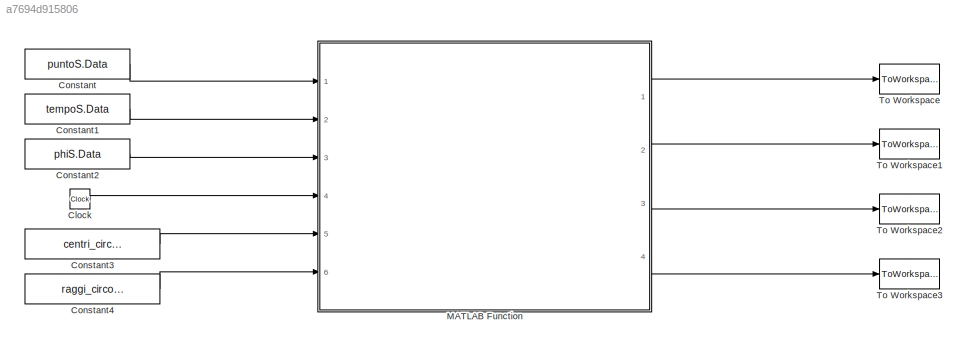
MODEL slx_a7694d915806
KIND model
CONFIG AbsTol = auto
CONFIG EnableMultiTasking = off
CONFIG FixedStep = 0.05
CONFIG MaxStep = auto
CONFIG MinStep = auto
CONFIG RelTol = 1e-3
CONFIG SampleTimeConstraint = Unconstrained
CONFIG Solver = FixedStepAuto
CONFIG SolverName = FixedStepAuto
CONFIG StartTime = 0.0
CONFIG StopTime = tempoS.data(3)
BLOCK [Clock] Clock
BLOCK [Constant] Constant
  Value = puntoS.Data
BLOCK [Constant] Constant1
  Value = tempoS.Data
BLOCK [Constant] Constant2
  Value = phiS.Data
BLOCK [Constant] Constant3
  Value = centri_circonferenzeS.Data
BLOCK [Constant] Constant4
  Value = raggi_circonferenzeS.Data
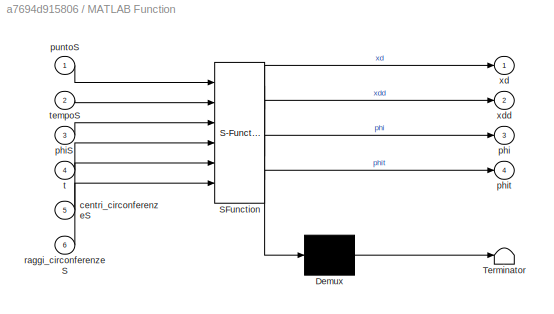
BLOCK [SubSystem] MATLAB Function
  ErrorFcn = Stateflow.Translate.translate
  PermitHierarchicalResolution = ExplicitOnly
  Ports = [6, 4]
  RequestExecContextInheritance = off
  SFBlockType = MATLAB Function
  TreatAsAtomicUnit = on
BLOCK [Demux] MATLAB Function/ Demux 
  Outputs = 1
  Ports = [1, 1]
BLOCK [S-Function] MATLAB Function/ SFunction 
  EnableBusSupport = on
  FunctionName = sf_sfun
  PortCounts = [6 5]
  Ports = [6, 5]
  SFcnIsStateOwnerBlock = off
  SFunctionDeploymentMode = off
  Tag = Stateflow S-Function TOAD_simulation 2
BLOCK [Terminator] MATLAB Function/ Terminator 
BLOCK [Inport] MATLAB Function/centri_circonferenzeS
  IconDisplay = Port number
  Port = 5
BLOCK [Outport] MATLAB Function/phi
  IconDisplay = Port number
  Port = 3
BLOCK [Inport] MATLAB Function/phiS
  IconDisplay = Port number
  Port = 3
BLOCK [Outport] MATLAB Function/phit
  IconDisplay = Port number
  Port = 4
BLOCK [Inport] MATLAB Function/puntoS
  IconDisplay = Port number
BLOCK [Inport] MATLAB Function/raggi_circonferenzeS
  IconDisplay = Port number
  Port = 6
BLOCK [Inport] MATLAB Function/t
  IconDisplay = Port number
  Port = 4
BLOCK [Inport] MATLAB Function/tempoS
  IconDisplay = Port number
  Port = 2
BLOCK [Outport] MATLAB Function/xd
  IconDisplay = Port number
BLOCK [Outport] MATLAB Function/xdd
  IconDisplay = Port number
  Port = 2
BLOCK [ToWorkspace] To Workspace
  FixptAsFi = on
  MaxDataPoints = inf
  Ports = [1]
  SampleTime = -1
  Save2DSignal = 2-D array (concatenate along first dimension)
  VariableName = XD
BLOCK [ToWorkspace] To Workspace1
  FixptAsFi = on
  MaxDataPoints = inf
  Ports = [1]
  SampleTime = -1
  Save2DSignal = 2-D array (concatenate along first dimension)
  VariableName = XDD
BLOCK [ToWorkspace] To Workspace2
  FixptAsFi = on
  MaxDataPoints = inf
  Ports = [1]
  SampleTime = -1
  Save2DSignal = 2-D array (concatenate along first dimension)
  VariableName = PHI
BLOCK [ToWorkspace] To Workspace3
  FixptAsFi = on
  MaxDataPoints = inf
  Ports = [1]
  SampleTime = -1
  Save2DSignal = 2-D array (concatenate along first dimension)
  VariableName = PHIT
LINE Clock:1 -> MATLAB Function:4
LINE Constant1:1 -> MATLAB Function:2
LINE Constant2:1 -> MATLAB Function:3
LINE Constant3:1 -> MATLAB Function:5
LINE Constant4:1 -> MATLAB Function:6
LINE Constant:1 -> MATLAB Function:1
LINE MATLAB Function:1 -> To Workspace:1
LINE MATLAB Function:2 -> To Workspace1:1
LINE MATLAB Function:3 -> To Workspace2:1
LINE MATLAB Function:4 -> To Workspace3:1
CHART MATLAB Function states=1 transitions=1
  STATE_LABEL 'eML_blk_kernel()'
  STATE_LABEL 'SCRIPT:\nfunction [xd,xdd,phi,phit] = fcn(puntoS, tempoS, phiS, t, centri_circonferenzeS, raggi_circonferenzeS)\n\n    punto = struct;\n    punto.iniziale = puntoS(1,:);\n    punto.finale = puntoS(2,:);\n    \n    tempo = struct;\n    tempo.iniziale = tempoS(1);\n    tempo.finale1 = tempoS(2);\n    tempo.finale2 = tempoS(3);\n    \n    phi_in = struct;\n    phi_in.iniziale = phiS(1);\n    phi_in.finale = phiS(2...<+368ch>'
